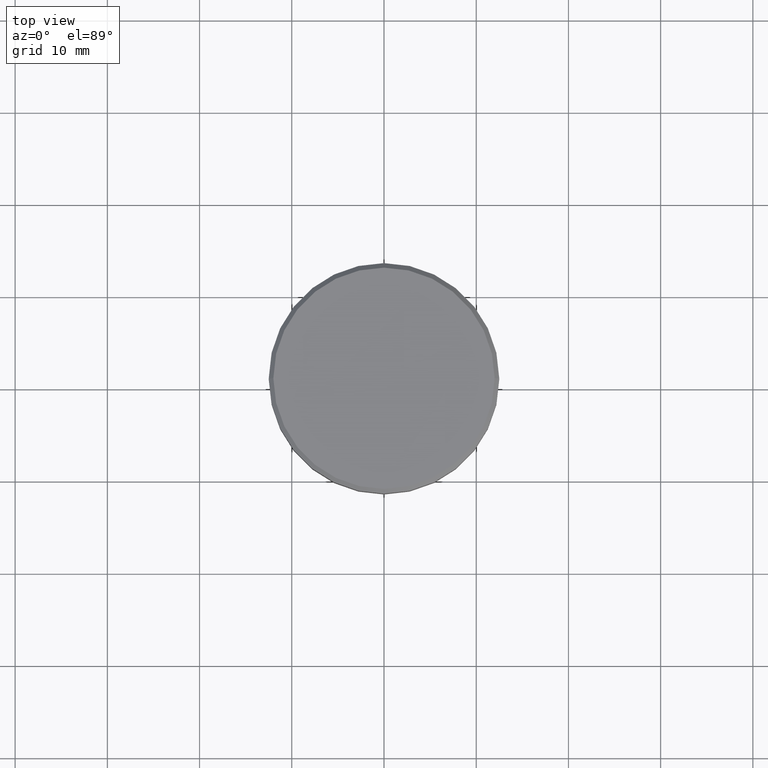
[diagram: clean part render]
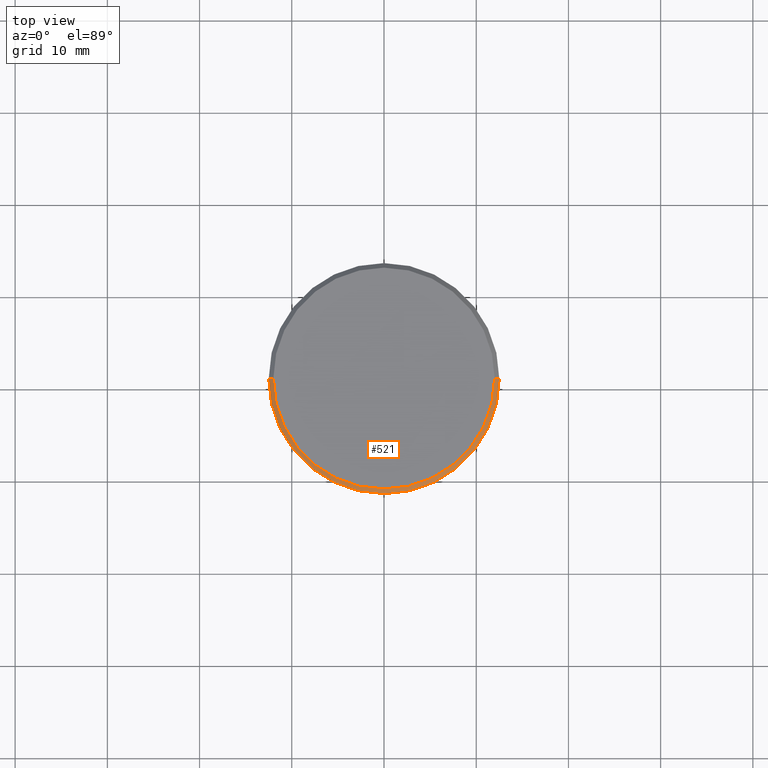
[diagram: same view with one face highlighted and labeled with its STEP entity id]
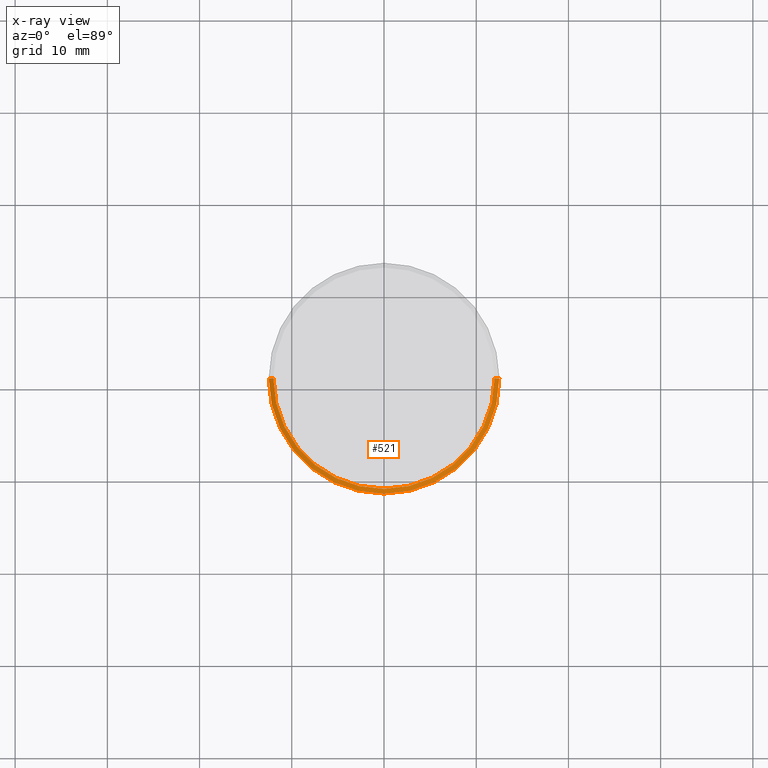
[diagram: x-ray of the same camera — body ghosted, the highlighted face saturated]
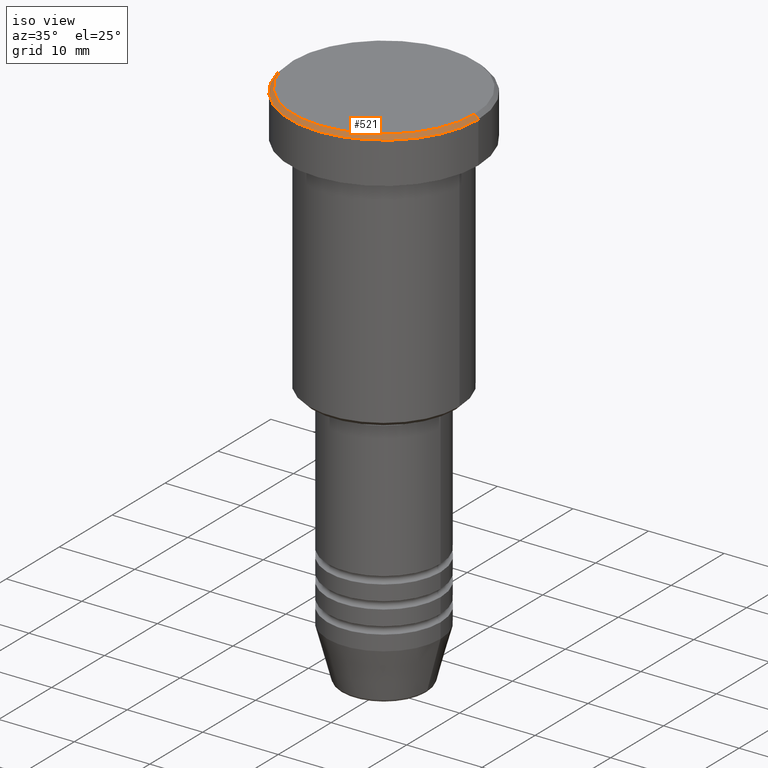
[diagram: same view with one face highlighted and labeled with its STEP entity id]
A machine part, top view. The second image highlights one B-rep face of the part: STEP entity #521.
The next image is the same camera in x-ray: the body ghosted, the highlighted face saturated — about 0% of this face is hidden behind the body in this view.
A second angle (iso view) of the same face is appended — the face is thin or edge-on in the first view.
In plain terms, the highlighted conical surface has half-angle 45 deg.
Its self-contained STEP definition (entity closure, byte-faithful):
#40 = VERTEX_POINT ( 'NONE', #717 ) ;
#79 = AXIS2_PLACEMENT_3D ( 'NONE', #1112, #115, #576 ) ;
#89 = CARTESIAN_POINT ( 'NONE',  ( -11.99999999999998934, 0.000000000000000000, 0.000000000000000000 ) ) ;
#113 = DIRECTION ( 'NONE',  ( -1.000000000000000000, 0.000000000000000000, 0.000000000000000000 ) ) ;
#115 = DIRECTION ( 'NONE',  ( -0.000000000000000000, -0.000000000000000000, 1.000000000000000000 ) ) ;
#119 = VERTEX_POINT ( 'NONE', #290 ) ;
#156 = CARTESIAN_POINT ( 'NONE',  ( 0.000000000000000000, 0.000000000000000000, -0.5000000000000126565 ) ) ;
#174 = VECTOR ( 'NONE', #1182, 999.9999999999998863 ) ;
#178 = EDGE_CURVE ( 'NONE', #119, #659, #510, .T. ) ;
#221 = CARTESIAN_POINT ( 'NONE',  ( 11.99999999999998934, 1.500192328955507143E-15, 0.000000000000000000 ) ) ;
#228 = FACE_OUTER_BOUND ( 'NONE', #517, .T. ) ;
#250 = DIRECTION ( 'NONE',  ( 0.000000000000000000, 0.000000000000000000, -1.000000000000000000 ) ) ;
#290 = CARTESIAN_POINT ( 'NONE',  ( -11.99999999999998934, 0.000000000000000000, 0.000000000000000000 ) ) ;
#305 = LINE ( 'NONE', #929, #1120 ) ;
#306 = CIRCLE ( 'NONE', #971, 12.50000000000000000 ) ;
#310 = EDGE_CURVE ( 'NONE', #661, #40, #306, .T. ) ;
#383 = DIRECTION ( 'NONE',  ( 0.7071067811865462405, 8.659560562354918067E-17, -0.7071067811865489050 ) ) ;
#412 = DIRECTION ( 'NONE',  ( 1.000000000000000000, 0.000000000000000000, 0.000000000000000000 ) ) ;
#417 = CONICAL_SURFACE ( 'NONE', #1087, 11.99999999999998934, 0.7853981633974465026 ) ;
#482 = EDGE_CURVE ( 'NONE', #119, #40, #991, .T. ) ;
#510 = CIRCLE ( 'NONE', #79, 11.99999999999998934 ) ;
#517 = EDGE_LOOP ( 'NONE', ( #975, #623, #1038, #1138 ) ) ;
#521 = ADVANCED_FACE ( 'NONE', ( #228 ), #417, .T. ) ;
#576 = DIRECTION ( 'NONE',  ( 1.000000000000000000, 0.000000000000000000, 0.000000000000000000 ) ) ;
#623 = ORIENTED_EDGE ( 'NONE', *, *, #178, .F. ) ;
#659 = VERTEX_POINT ( 'NONE', #221 ) ;
#661 = VERTEX_POINT ( 'NONE', #850 ) ;
#717 = CARTESIAN_POINT ( 'NONE',  ( -12.50000000000000000, 1.530808498934191521E-15, -0.5000000000000126565 ) ) ;
#837 = CARTESIAN_POINT ( 'NONE',  ( 0.000000000000000000, 0.000000000000000000, 0.000000000000000000 ) ) ;
#850 = CARTESIAN_POINT ( 'NONE',  ( 12.50000000000000000, 0.000000000000000000, -0.5000000000000126565 ) ) ;
#929 = CARTESIAN_POINT ( 'NONE',  ( 11.99999999999998934, 1.469576158976822567E-15, 0.000000000000000000 ) ) ;
#971 = AXIS2_PLACEMENT_3D ( 'NONE', #156, #250, #412 ) ;
#975 = ORIENTED_EDGE ( 'NONE', *, *, #1077, .F. ) ;
#991 = LINE ( 'NONE', #89, #174 ) ;
#1038 = ORIENTED_EDGE ( 'NONE', *, *, #482, .T. ) ;
#1077 = EDGE_CURVE ( 'NONE', #659, #661, #305, .T. ) ;
#1087 = AXIS2_PLACEMENT_3D ( 'NONE', #837, #1139, #113 ) ;
#1112 = CARTESIAN_POINT ( 'NONE',  ( 0.000000000000000000, 0.000000000000000000, 0.000000000000000000 ) ) ;
#1120 = VECTOR ( 'NONE', #383, 999.9999999999998863 ) ;
#1138 = ORIENTED_EDGE ( 'NONE', *, *, #310, .F. ) ;
#1139 = DIRECTION ( 'NONE',  ( 0.000000000000000000, 0.000000000000000000, -1.000000000000000000 ) ) ;
#1182 = DIRECTION ( 'NONE',  ( -0.7071067811865462405, 0.000000000000000000, -0.7071067811865489050 ) ) ;